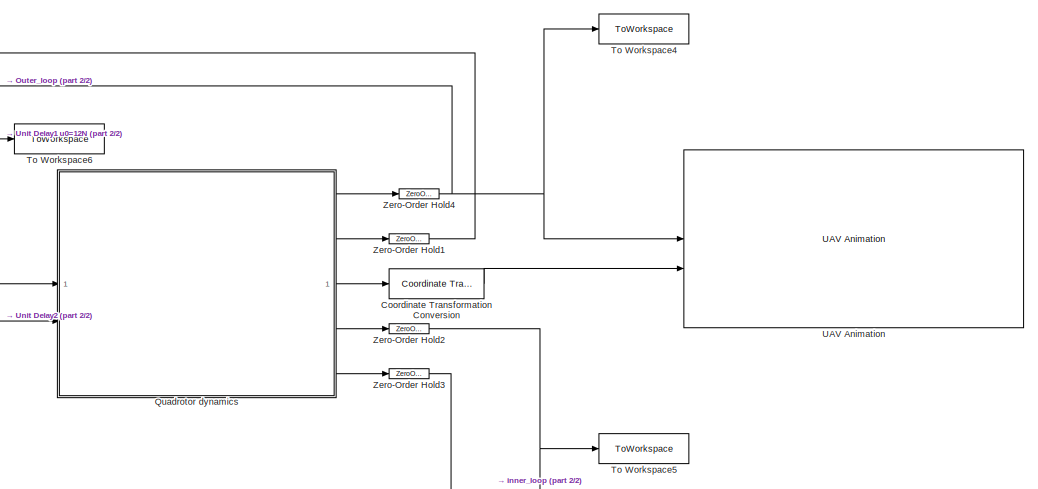
[diagram: root canvas - part 1/2, top right region]
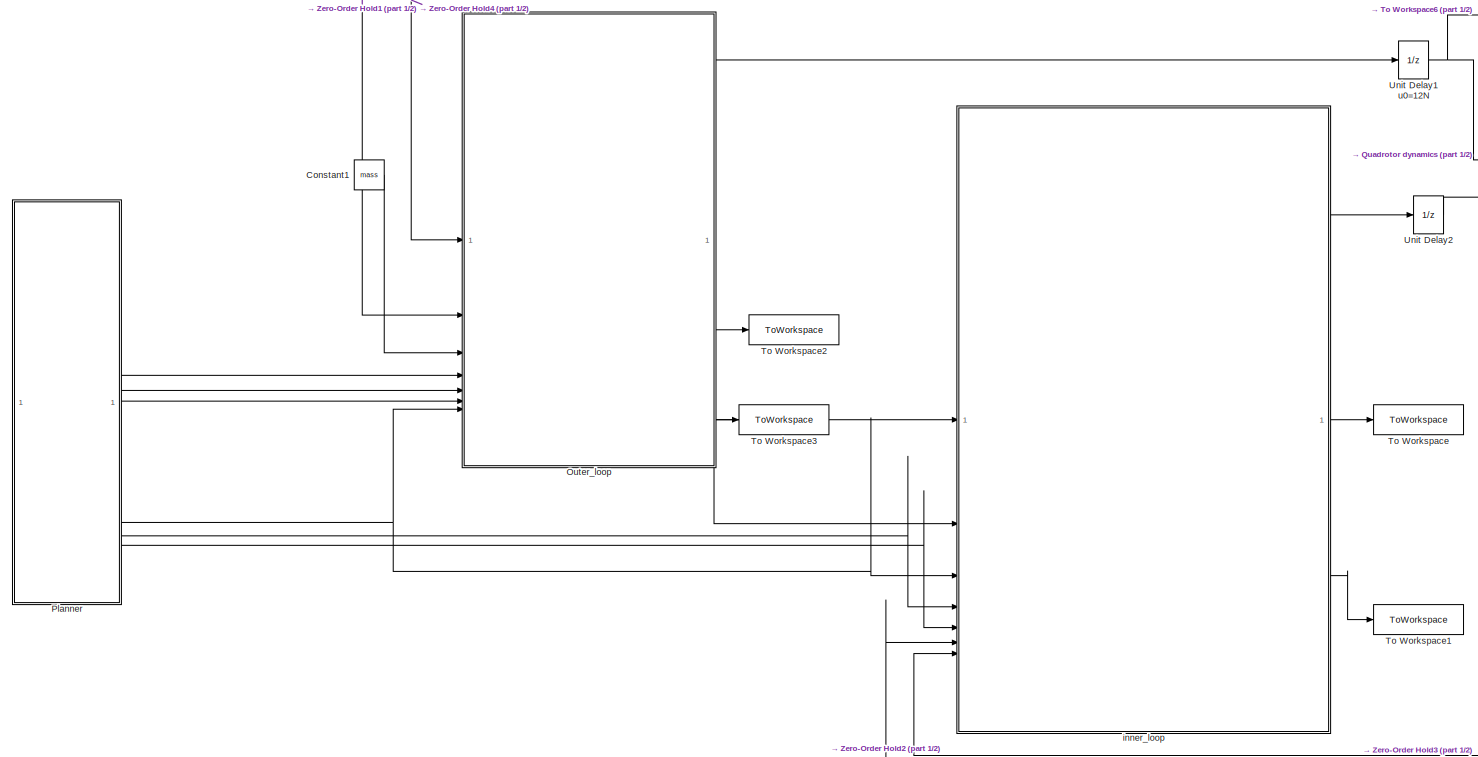
[diagram: root canvas - part 2/2, left side, full height]
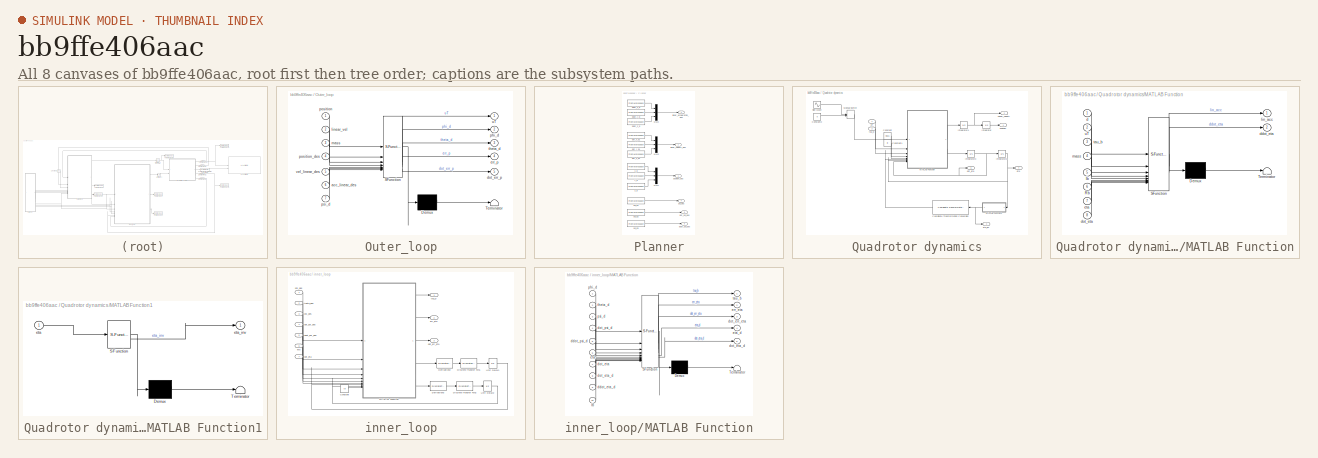
[diagram: thumbnail index - all 8 canvases of the model, root first then tree order]
MODEL slx_bb9ffe406aac
KIND model
CONFIG AbsTol = auto
CONFIG EnableMultiTasking = off
CONFIG FixedStep = auto
CONFIG InitFcn = addpath('TRAJECTORIES\');  \n%square_coplanar\ncircular_coplanar
CONFIG MaxStep = auto
CONFIG MinStep = auto
CONFIG RelTol = 1e-3
CONFIG SampleTimeConstraint = Unconstrained
CONFIG SolverName = VariableStepAuto
CONFIG StartFcn = %% Setup Video e Timer\nvideoFile = 'Hierarchical_quad.avi';\n%videoFile = 'Hierarchical_circ.avi';\nvideoObj = VideoWriter(videoFile);\nvideoObj.FrameRate = 30;\nopen(videoObj);\nassignin('base','videoObj',videoObj);\n \n \nt = timer('ExecutionMode','fixedSpacing','Period',0.05,'StartDelay',2,...\n          'TimerFcn',@(~,~) captureFrame(findall(0,'Type','figure','Name','UAV Animation'), videoObj));\nstart(...<+40ch>
CONFIG StartTime = 0.0
CONFIG StopFcn = % Default graphics settings\nset(0, 'DefaultTextInterpreter', 'latex')\nset(0, 'DefaultLegendInterpreter', 'latex')\nset(0, 'DefaultAxesTickLabelInterpreter', 'latex')\nlw = 2;\n\nplot_errors = figure('Renderer', 'painters', 'Position', [10 10 900 650]);    \n\nsubplot(2,1,1)\nplot(out.tout, out.err_p.signals.values(1,:), 'k-', 'Linewidth', lw ,'Color', [0.2, 0.2, 0.2]);\nhold on\nplot(out.tout, out.err_p.si...<+4552ch>
CONFIG StopTime = tot_time
BLOCK [Constant] Constant1
  Value = mass
BLOCK [Reference] Coordinate Transformation Conversion  REF=robotcorelib/Coordinate Transformation Conversion
  SourceBlock = robotcorelib/Coordinate Transformation Conversion
  SourceType = robotics.slcore.internal.block.CoordinateTransformationConversion
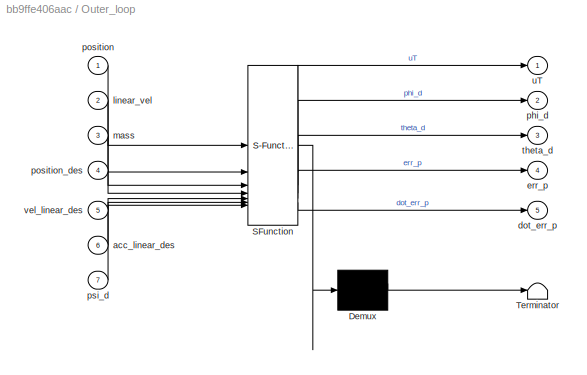
BLOCK [SubSystem] Outer_loop
  ErrorFcn = Stateflow.Translate.translate
  PermitHierarchicalResolution = ExplicitOnly
  SFBlockType = MATLAB Function
  TreatAsAtomicUnit = on
BLOCK [Demux] Outer_loop/ Demux 
  Outputs = 1
BLOCK [S-Function] Outer_loop/ SFunction 
  EnableBusSupport = on
  FunctionName = sf_sfun
  PortCounts = [7 6]
  SFcnIsStateOwnerBlock = off
  SFunctionDeploymentMode = off
  Tag = Stateflow S-Function 1
BLOCK [Terminator] Outer_loop/ Terminator 
BLOCK [Inport] Outer_loop/acc_linear_des
  Port = 6
BLOCK [Outport] Outer_loop/dot_err_p
  Port = 5
BLOCK [Outport] Outer_loop/err_p
  Port = 4
BLOCK [Inport] Outer_loop/linear_vel
  Port = 2
BLOCK [Inport] Outer_loop/mass
  Port = 3
BLOCK [Outport] Outer_loop/phi_d
  Port = 2
BLOCK [Inport] Outer_loop/position
BLOCK [Inport] Outer_loop/position_des
  Port = 4
BLOCK [Inport] Outer_loop/psi_d
  Port = 7
BLOCK [Outport] Outer_loop/theta_d
  Port = 3
BLOCK [Outport] Outer_loop/uT
BLOCK [Inport] Outer_loop/vel_linear_des
  Port = 5
BLOCK [SubSystem] Planner
BLOCK [Mux] Planner/Mux1
  DisplayOption = bar
  Inputs = 3
BLOCK [Mux] Planner/Mux2
  DisplayOption = bar
  Inputs = 3
BLOCK [Mux] Planner/Mux3
  DisplayOption = bar
  Inputs = 3
BLOCK [Outport] Planner/ddot_psi_des
  Port = 6
BLOCK [FromWorkspace] Planner/ddot_x_d
  SampleTime = Ts
  VariableName = [t' ddot_csi_d(1,:)']
BLOCK [FromWorkspace] Planner/ddot_y_d
  SampleTime = Ts
  VariableName = [t' ddot_csi_d(2,:)']
BLOCK [FromWorkspace] Planner/ddot_z_d
  SampleTime = Ts
  VariableName = [t' ddot_csi_d(3,:)']
BLOCK [Outport] Planner/dot_psi_des
  Port = 5
BLOCK [FromWorkspace] Planner/dot_x_d1
  SampleTime = Ts
  VariableName = [t' dot_csi_d(1,:)']
BLOCK [FromWorkspace] Planner/dot_y_d1
  SampleTime = Ts
  VariableName = [t' dot_csi_d(2,:)']
BLOCK [FromWorkspace] Planner/dot_z_d1
  SampleTime = Ts
  VariableName = [t' dot_csi_d(3,:)']
BLOCK [Outport] Planner/linear_acceleration_des
  Port = 3
BLOCK [Outport] Planner/linear_velocity_des
  Port = 2
BLOCK [Outport] Planner/position_des
BLOCK [FromWorkspace] Planner/psi_d1
  SampleTime = Ts
  VariableName = [t' psi_d']
BLOCK [FromWorkspace] Planner/psi_d2
  SampleTime = Ts
  VariableName = [t' dot_psi_d']
BLOCK [FromWorkspace] Planner/psi_d3
  SampleTime = Ts
  VariableName = [t' ddot_psi_d']
BLOCK [Outport] Planner/psi_des
  Port = 4
BLOCK [FromWorkspace] Planner/x_d
  SampleTime = Ts
  VariableName = [t' csi_d(1,:)']
BLOCK [FromWorkspace] Planner/y_d
  SampleTime = Ts
  VariableName = [t' csi_d(2,:)']
BLOCK [FromWorkspace] Planner/z_d
  SampleTime = Ts
  VariableName = [t' csi_d(3,:)']
BLOCK [SubSystem] Quadrotor dynamics
BLOCK [Constant] Quadrotor dynamics/Constant
  Value = mass
BLOCK [Constant] Quadrotor dynamics/Constant1
  Value = Ib
BLOCK [Constant] Quadrotor dynamics/Constant2
  Value = 0
BLOCK [Reference] Quadrotor dynamics/Coordinate Transformation Conversion  REF=robotcorelib/Coordinate Transformation Conversion
  LibrarySourceBlock = robotutilslib/Coordinate Transformation Conversion
  NameLocation = top
  SourceBlock = robotcorelib/Coordinate Transformation Conversion
  SourceType = robotics.slcore.internal.block.CoordinateTransformationConversion
BLOCK [Integrator] Quadrotor dynamics/Integrator
  InitialCondition = [0 0 -1]'
BLOCK [Integrator] Quadrotor dynamics/Integrator1
  InitialCondition = lin_vel_0'
BLOCK [Integrator] Quadrotor dynamics/Integrator2
  InitialCondition = [0,0,0]'
BLOCK [Integrator] Quadrotor dynamics/Integrator3
  InitialCondition = [0 0 0]'
BLOCK [Outport] Quadrotor dynamics/Linear_velocity
  Port = 2
BLOCK [SubSystem] Quadrotor dynamics/MATLAB Function
  ErrorFcn = Stateflow.Translate.translate
  PermitHierarchicalResolution = ExplicitOnly
  SFBlockType = MATLAB Function
  TreatAsAtomicUnit = on
BLOCK [Demux] Quadrotor dynamics/MATLAB Function/ Demux 
  Outputs = 1
BLOCK [S-Function] Quadrotor dynamics/MATLAB Function/ SFunction 
  EnableBusSupport = on
  FunctionName = sf_sfun
  PortCounts = [8 3]
  SFcnIsStateOwnerBlock = off
  SFunctionDeploymentMode = off
  Tag = Stateflow S-Function 4
BLOCK [Terminator] Quadrotor dynamics/MATLAB Function/ Terminator 
BLOCK [Inport] Quadrotor dynamics/MATLAB Function/Ib
  Port = 5
BLOCK [Inport] Quadrotor dynamics/MATLAB Function/Rb
  Port = 6
BLOCK [Inport] Quadrotor dynamics/MATLAB Function/d
BLOCK [Outport] Quadrotor dynamics/MATLAB Function/ddot_eta
  Port = 2
BLOCK [Inport] Quadrotor dynamics/MATLAB Function/dot_eta
  Port = 8
BLOCK [Inport] Quadrotor dynamics/MATLAB Function/eta
  Port = 7
BLOCK [Outport] Quadrotor dynamics/MATLAB Function/lin_acc
BLOCK [Inport] Quadrotor dynamics/MATLAB Function/mass
  Port = 4
BLOCK [Inport] Quadrotor dynamics/MATLAB Function/tau_b
  Port = 3
BLOCK [Inport] Quadrotor dynamics/MATLAB Function/uT
  Port = 2
BLOCK [SubSystem] Quadrotor dynamics/MATLAB Function1
  ErrorFcn = Stateflow.Translate.translate
  NameLocation = top
  PermitHierarchicalResolution = ExplicitOnly
  SFBlockType = MATLAB Function
  TreatAsAtomicUnit = on
BLOCK [Demux] Quadrotor dynamics/MATLAB Function1/ Demux 
  Outputs = 1
BLOCK [S-Function] Quadrotor dynamics/MATLAB Function1/ SFunction 
  EnableBusSupport = on
  FunctionName = sf_sfun
  PortCounts = [1 2]
  SFcnIsStateOwnerBlock = off
  SFunctionDeploymentMode = off
  Tag = Stateflow S-Function 3
BLOCK [Terminator] Quadrotor dynamics/MATLAB Function1/ Terminator 
BLOCK [Inport] Quadrotor dynamics/MATLAB Function1/eta
BLOCK [Outport] Quadrotor dynamics/MATLAB Function1/eta_inv
BLOCK [ManualSwitch] Quadrotor dynamics/Manual Switch
  CurrentSetting = 0
BLOCK [Outport] Quadrotor dynamics/Position
BLOCK [Sin] Quadrotor dynamics/Sine Wave
  Frequency = 0.2
  SampleTime = 0
BLOCK [Outport] Quadrotor dynamics/dot_eta
  Port = 5
BLOCK [Outport] Quadrotor dynamics/eta
  Port = 4
BLOCK [Outport] Quadrotor dynamics/eta_inv
  Port = 3
BLOCK [Inport] Quadrotor dynamics/tau_b
  Port = 2
BLOCK [Inport] Quadrotor dynamics/uT
BLOCK [ToWorkspace] To Workspace
  FixptAsFi = on
  MaxDataPoints = inf
  SampleTime = -1
  SaveFormat = Structure With Time
  VariableName = err_eta
BLOCK [ToWorkspace] To Workspace1
  FixptAsFi = on
  MaxDataPoints = inf
  SampleTime = -1
  SaveFormat = Structure With Time
  VariableName = dot_err_eta
BLOCK [ToWorkspace] To Workspace2
  FixptAsFi = on
  MaxDataPoints = inf
  SampleTime = -1
  SaveFormat = Structure With Time
  VariableName = err_p
BLOCK [ToWorkspace] To Workspace3
  FixptAsFi = on
  MaxDataPoints = inf
  SampleTime = -1
  SaveFormat = Structure With Time
  VariableName = dot_err_p
BLOCK [ToWorkspace] To Workspace4
  FixptAsFi = on
  MaxDataPoints = inf
  SampleTime = -1
  SaveFormat = Structure With Time
  VariableName = position
BLOCK [ToWorkspace] To Workspace5
  FixptAsFi = on
  MaxDataPoints = inf
  SampleTime = -1
  SaveFormat = Structure With Time
  VariableName = orientation
BLOCK [ToWorkspace] To Workspace6
  FixptAsFi = on
  MaxDataPoints = inf
  SampleTime = -1
  SaveFormat = Structure With Time
  VariableName = uT
BLOCK [Reference] UAV Animation  REF=uavutilslib/UAV Animation
  SourceBlock = uavutilslib/UAV Animation
  SourceType = uav.sluav.internal.system.UAVAnimation
BLOCK [UnitDelay] Unit Delay1 u0=12N
  InitialCondition = 12
  SampleTime = Ts
BLOCK [UnitDelay] Unit Delay2
  InitialCondition = [0 0 0]'
  SampleTime = Ts
BLOCK [ZeroOrderHold] Zero-Order Hold1
  SampleTime = Ts
BLOCK [ZeroOrderHold] Zero-Order Hold2
  SampleTime = Ts
BLOCK [ZeroOrderHold] Zero-Order Hold3
  SampleTime = Ts
BLOCK [ZeroOrderHold] Zero-Order Hold4
  SampleTime = Ts
BLOCK [SubSystem] inner_loop
BLOCK [Constant] inner_loop/Constant
  Value = Ib
BLOCK [DiscreteTransferFcn] inner_loop/Derivation2
  Denominator = [Ts 0]
  InitialStates = [0 0 0]'
  InputPortMap = u0
  Numerator = [1 -1]
  SampleTime = Ts
BLOCK [DiscreteTransferFcn] inner_loop/Derivation3
  Denominator = [Ts 0]
  InitialStates = [0 0 0]'
  InputPortMap = u0
  Numerator = [1 -1]
  SampleTime = Ts
BLOCK [DiscreteTransferFcn] inner_loop/Discrete Transfer Fcn1
  Denominator = [1 -0.812]
  InputPortMap = u0
  Numerator = 0.188
BLOCK [DiscreteTransferFcn] inner_loop/Discrete Transfer Fcn2
  Denominator = [1 -0.812]
  InputPortMap = u0
  Numerator = 0.188
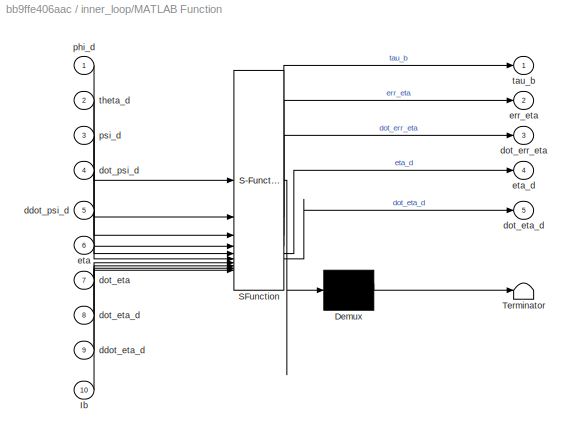
BLOCK [SubSystem] inner_loop/MATLAB Function
  ErrorFcn = Stateflow.Translate.translate
  PermitHierarchicalResolution = ExplicitOnly
  SFBlockType = MATLAB Function
  TreatAsAtomicUnit = on
BLOCK [Demux] inner_loop/MATLAB Function/ Demux 
  Outputs = 1
BLOCK [S-Function] inner_loop/MATLAB Function/ SFunction 
  EnableBusSupport = on
  FunctionName = sf_sfun
  PortCounts = [10 6]
  SFcnIsStateOwnerBlock = off
  SFunctionDeploymentMode = off
  Tag = Stateflow S-Function 2
BLOCK [Terminator] inner_loop/MATLAB Function/ Terminator 
BLOCK [Inport] inner_loop/MATLAB Function/Ib
  Port = 10
BLOCK [Inport] inner_loop/MATLAB Function/ddot_eta_d
  Port = 9
BLOCK [Inport] inner_loop/MATLAB Function/ddot_psi_d
  Port = 5
BLOCK [Outport] inner_loop/MATLAB Function/dot_err_eta
  Port = 3
BLOCK [Inport] inner_loop/MATLAB Function/dot_eta
  Port = 7
BLOCK [Outport] inner_loop/MATLAB Function/dot_eta_d
  Port = 5
BLOCK [Inport] inner_loop/MATLAB Function/dot_eta_d 
  Port = 8
BLOCK [Inport] inner_loop/MATLAB Function/dot_psi_d
  Port = 4
BLOCK [Outport] inner_loop/MATLAB Function/err_eta
  Port = 2
BLOCK [Inport] inner_loop/MATLAB Function/eta
  Port = 6
BLOCK [Outport] inner_loop/MATLAB Function/eta_d
  Port = 4
BLOCK [Inport] inner_loop/MATLAB Function/phi_d
BLOCK [Inport] inner_loop/MATLAB Function/psi_d
  Port = 3
BLOCK [Outport] inner_loop/MATLAB Function/tau_b
BLOCK [Inport] inner_loop/MATLAB Function/theta_d
  Port = 2
BLOCK [UnitDelay] inner_loop/Unit Delay1
  InitialCondition = [0 0 0]'
  NameLocation = top
  SampleTime = Ts
BLOCK [UnitDelay] inner_loop/Unit Delay2
  InitialCondition = [0 0 0]'
  NameLocation = top
  SampleTime = Ts
BLOCK [Inport] inner_loop/ddot_psi_des
  Port = 5
BLOCK [Outport] inner_loop/dot_err_eta
  Port = 3
BLOCK [Inport] inner_loop/dot_eta
  Port = 7
BLOCK [Inport] inner_loop/dot_psi_des
  Port = 4
BLOCK [Outport] inner_loop/err_eta
  Port = 2
BLOCK [Inport] inner_loop/eta
  Port = 6
BLOCK [Inport] inner_loop/phi_des
BLOCK [Inport] inner_loop/psi_des
  Port = 3
BLOCK [Outport] inner_loop/tau_b
BLOCK [Inport] inner_loop/theta_des
  Port = 2
LINE Constant1:1 -> Outer_loop:3
LINE Coordinate Transformation Conversion:1 -> UAV Animation:2
LINE Outer_loop:1 -> Unit Delay1 u0=12N:1
LINE Outer_loop:2 -> inner_loop:1
LINE Outer_loop:3 -> inner_loop:2
LINE Outer_loop:4 -> To Workspace2:1
LINE Outer_loop:5 -> To Workspace3:1
LINE Planner/Mux1:1 -> Planner/position_des:1
LINE Planner/Mux2:1 -> Planner/linear_acceleration_des:1
LINE Planner/Mux3:1 -> Planner/linear_velocity_des:1
LINE Planner/ddot_x_d:1 -> Planner/Mux2:1
LINE Planner/ddot_y_d:1 -> Planner/Mux2:2
LINE Planner/ddot_z_d:1 -> Planner/Mux2:3
LINE Planner/dot_x_d1:1 -> Planner/Mux3:1
LINE Planner/dot_y_d1:1 -> Planner/Mux3:2
LINE Planner/dot_z_d1:1 -> Planner/Mux3:3
LINE Planner/psi_d1:1 -> Planner/psi_des:1
LINE Planner/psi_d2:1 -> Planner/dot_psi_des:1
LINE Planner/psi_d3:1 -> Planner/ddot_psi_des:1
LINE Planner/x_d:1 -> Planner/Mux1:1
LINE Planner/y_d:1 -> Planner/Mux1:2
LINE Planner/z_d:1 -> Planner/Mux1:3
LINE Planner:1 -> Outer_loop:4
LINE Planner:2 -> Outer_loop:5
LINE Planner:3 -> Outer_loop:6
NET Planner:4 -> Outer_loop:7, inner_loop:3
LINE Planner:5 -> inner_loop:4
LINE Planner:6 -> inner_loop:5
LINE Quadrotor dynamics/Constant1:1 -> Quadrotor dynamics/MATLAB Function:5
LINE Quadrotor dynamics/Constant2:1 -> Quadrotor dynamics/Manual Switch:2
LINE Quadrotor dynamics/Constant:1 -> Quadrotor dynamics/MATLAB Function:4
LINE Quadrotor dynamics/Coordinate Transformation Conversion:1 -> Quadrotor dynamics/MATLAB Function:6
NET Quadrotor dynamics/Integrator1:1 -> Quadrotor dynamics/Integrator:1, Quadrotor dynamics/Linear_velocity:1
NET Quadrotor dynamics/Integrator2:1 -> Quadrotor dynamics/MATLAB Function1:1, Quadrotor dynamics/MATLAB Function:7, Quadrotor dynamics/eta:1
NET Quadrotor dynamics/Integrator3:1 -> Quadrotor dynamics/Integrator2:1, Quadrotor dynamics/MATLAB Function:8, Quadrotor dynamics/dot_eta:1
LINE Quadrotor dynamics/Integrator:1 -> Quadrotor dynamics/Position:1
NET Quadrotor dynamics/MATLAB Function1:1 -> Quadrotor dynamics/Coordinate Transformation Conversion:1, Quadrotor dynamics/eta_inv:1
LINE Quadrotor dynamics/MATLAB Function:1 -> Quadrotor dynamics/Integrator1:1
LINE Quadrotor dynamics/MATLAB Function:2 -> Quadrotor dynamics/Integrator3:1
LINE Quadrotor dynamics/Manual Switch:1 -> Quadrotor dynamics/MATLAB Function:1
LINE Quadrotor dynamics/Sine Wave:1 -> Quadrotor dynamics/Manual Switch:1
LINE Quadrotor dynamics/tau_b:1 -> Quadrotor dynamics/MATLAB Function:3
LINE Quadrotor dynamics/uT:1 -> Quadrotor dynamics/MATLAB Function:2
LINE Quadrotor dynamics:1 -> Zero-Order Hold4:1
LINE Quadrotor dynamics:2 -> Zero-Order Hold1:1
LINE Quadrotor dynamics:3 -> Coordinate Transformation Conversion:1
LINE Quadrotor dynamics:4 -> Zero-Order Hold2:1
LINE Quadrotor dynamics:5 -> Zero-Order Hold3:1
NET Unit Delay1 u0=12N:1 -> Quadrotor dynamics:1, To Workspace6:1
LINE Unit Delay2:1 -> Quadrotor dynamics:2
LINE Zero-Order Hold1:1 -> Outer_loop:2
NET Zero-Order Hold2:1 -> To Workspace5:1, inner_loop:6
LINE Zero-Order Hold3:1 -> inner_loop:7
NET Zero-Order Hold4:1 -> Outer_loop:1, To Workspace4:1, UAV Animation:1
LINE inner_loop/Constant:1 -> inner_loop/MATLAB Function:10
LINE inner_loop/Derivation2:1 -> inner_loop/Discrete Transfer Fcn1:1
LINE inner_loop/Derivation3:1 -> inner_loop/Discrete Transfer Fcn2:1
LINE inner_loop/Discrete Transfer Fcn1:1 -> inner_loop/Unit Delay1:1
LINE inner_loop/Discrete Transfer Fcn2:1 -> inner_loop/Unit Delay2:1
LINE inner_loop/MATLAB Function:1 -> inner_loop/tau_b:1
LINE inner_loop/MATLAB Function:2 -> inner_loop/err_eta:1
LINE inner_loop/MATLAB Function:3 -> inner_loop/dot_err_eta:1
LINE inner_loop/MATLAB Function:4 -> inner_loop/Derivation2:1
LINE inner_loop/MATLAB Function:5 -> inner_loop/Derivation3:1
LINE inner_loop/Unit Delay1:1 -> inner_loop/MATLAB Function:8
LINE inner_loop/Unit Delay2:1 -> inner_loop/MATLAB Function:9
LINE inner_loop/ddot_psi_des:1 -> inner_loop/MATLAB Function:5
LINE inner_loop/dot_eta:1 -> inner_loop/MATLAB Function:7
LINE inner_loop/dot_psi_des:1 -> inner_loop/MATLAB Function:4
LINE inner_loop/eta:1 -> inner_loop/MATLAB Function:6
LINE inner_loop/phi_des:1 -> inner_loop/MATLAB Function:1
LINE inner_loop/psi_des:1 -> inner_loop/MATLAB Function:3
LINE inner_loop/theta_des:1 -> inner_loop/MATLAB Function:2
LINE inner_loop:1 -> Unit Delay2:1
LINE inner_loop:2 -> To Workspace:1
LINE inner_loop:3 -> To Workspace1:1
note: NET lines group one-source signal fan-out (src -> all destinations, sorted); 1:1 wires keep LINE
CHART Outer_loop states=1 transitions=1
  STATE_LABEL 'eML_blk_kernel()'
  STATE_LABEL 'SCRIPT:\nfunction [ uT, phi_d, theta_d, err_p, dot_err_p] = outer_loop( position, linear_vel, mass, ...\n    position_des, vel_linear_des, acc_linear_des,psi_d)\n\n    %Linear gain matrix\n    K_p = [10 0 0 sqrt(10) 0 0;\n           0 10 0 0 sqrt(10) 0;\n           0 0 10 0 0 sqrt(10)];\n    g = 9.81;\n    \n    %Compute the position error\n    err_p = position - position_des;\n    \n    %Compute the time deri...<+556ch>'
CHART inner_loop/MATLAB Function states=1 transitions=1
  STATE_LABEL 'eML_blk_kernel()'
  STATE_LABEL 'SCRIPT:\nfunction [ tau_b, err_eta, dot_err_eta, eta_d , dot_eta_d] = fcn(phi_d,theta_d, psi_d, dot_psi_d, ddot_psi_d, eta, dot_eta, dot_eta_d, ddot_eta_d, Ib)\n\n%% WRITE HERE THE INNER-LOOP CONTROL\n% zb_des: desired z-axis of the body frame\n% Rb: current rotation matrix\n% dot_Rb_des: time-derivative of the desired rotation matrix\n% omega_bb: current angular velocity expressed in the body frame\n% do...<+1808ch>'
CHART Quadrotor dynamics/MATLAB Function1 states=1 transitions=1
  STATE_LABEL 'eML_blk_kernel()'
  STATE_LABEL "SCRIPT:\nfunction eta_inv = fcn(eta)\n\neta_inv = [eta(3) eta(2) eta(1)]';\n"
CHART Quadrotor dynamics/MATLAB Function states=1 transitions=1
  STATE_LABEL 'eML_blk_kernel()'
  STATE_LABEL "SCRIPT:\nfunction [lin_acc,ddot_eta] = fcn(d,uT,tau_b,mass, Ib ,Rb, eta, dot_eta)\n\n    lin_acc = 9.81*[0 0 1]'-(uT/mass)*Rb*[0 0 1]'+d*ones(3,1);\n    \n    \n    Q = [1 0 -sin(eta(2));0 cos(eta(1)) cos(eta(2))*sin(eta(1));0 -sin(eta(1)) cos(eta(1))*cos(eta(2))];\n    Q_dot = [0 , 0 , -cos(eta(2))*dot_eta(2) ;\n                 0 , -sin(eta(1))*dot_eta(1) , cos(eta(1))*cos(eta(2))*dot_eta(1)-sin(eta(1))...<+383ch>"
CHART  states=0 transitions=0
CHART  states=0 transitions=0
CHART  states=0 transitions=0
CHART  states=0 transitions=0
